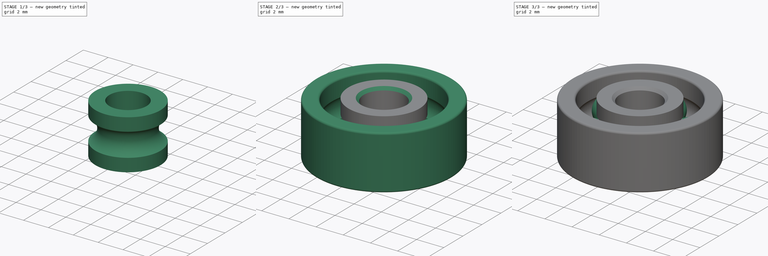
[diagram: build sequence overview — one tinted view per stage of 3, left to right]
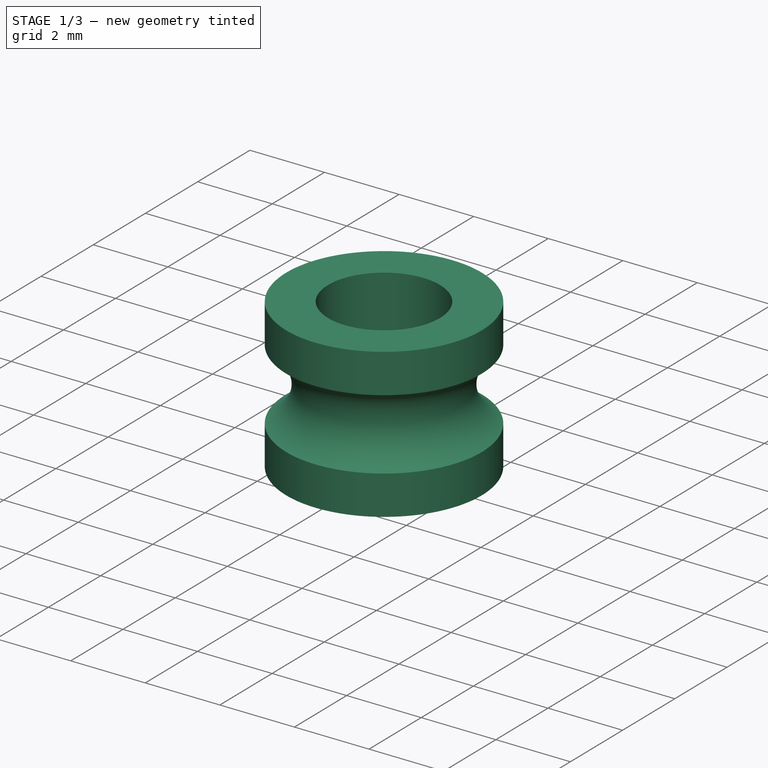
[diagram: stage 1 of 3 — iso view after this stage's code; geometry added in this stage tinted green]
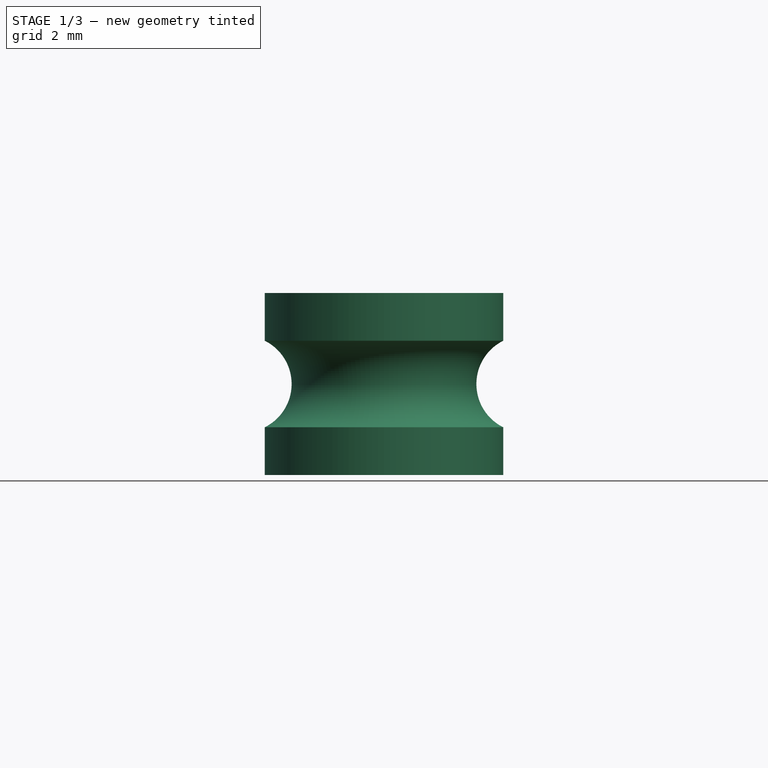
[diagram: stage 1 of 3 — front view after this stage's code; geometry added in this stage tinted green]
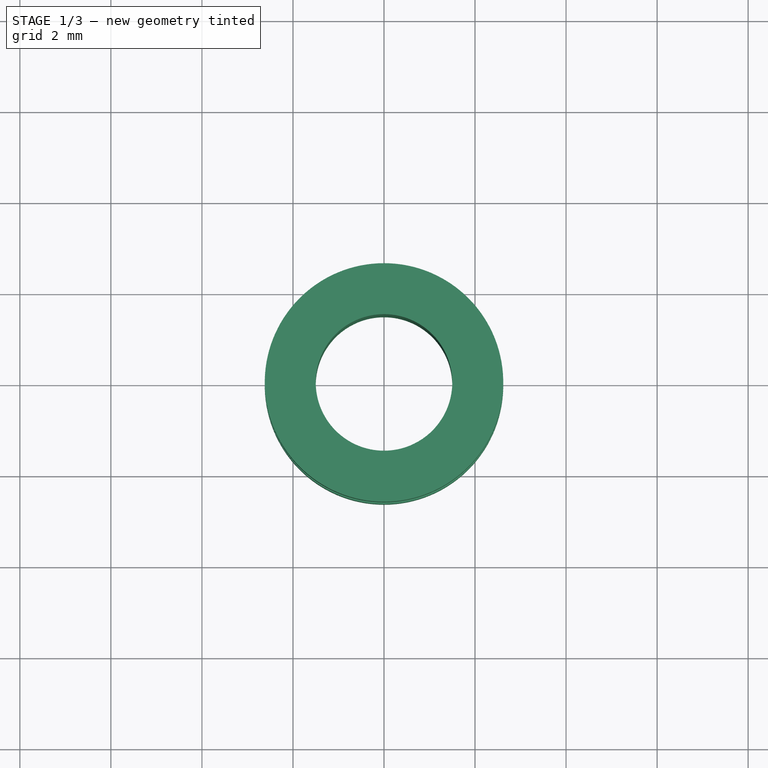
[diagram: stage 1 of 3 — top view after this stage's code; geometry added in this stage tinted green]
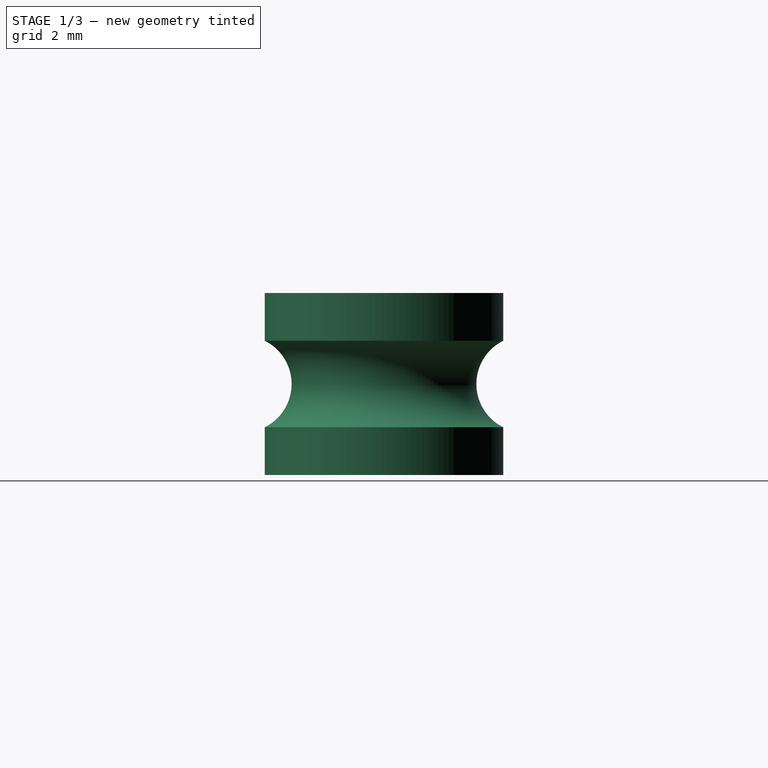
[diagram: stage 1 of 3 — right view after this stage's code; geometry added in this stage tinted green]
FCSTD DOCUMENT  (FreeCAD 0.14R3310 (Git))
Label: 89. RODAMIENTO DIN 625 SKF 623 (DEL EXTRUSOR)
License: CC-BY 3.0
LicenseURL: http://creativecommons.org/licenses/by/3.0/
objects: Sketcher::SketchObject×3, PartDesign::Revolution×2, Part::Sphere×1, Part::FeaturePython×1, PartDesign::Fillet×1, PartDesign::Pocket×1, PartDesign::Chamfer×1
note: 13 computed .brp shape members not serialized (recipe doc carries the construction recipe); baked Part::Feature solids carry a one-line shape summary decoded from their .brp

FEATURE [Sketcher::SketchObject] Sketch
  Placement = pos=(0,0,0) rot=(0.57735,0.57735,0.57735;2.0944rad)
  sketch-geometry (13):
    g0: LineSegment [constr] StartX=5 StartY=2 StartZ=0 EndX=5 EndY=-2 EndZ=0
    g1: LineSegment [constr] StartX=5 StartY=2 StartZ=0 EndX=0 EndY=2 EndZ=0
    g2: LineSegment StartX=0 StartY=2 StartZ=0 EndX=2.62 EndY=2 EndZ=0
    g3: ArcOfCircle CenterX=3.09 CenterY=0 CenterZ=0 NormalX=0 NormalY=0 NormalZ=1 Radius=1.06 StartAngle=2.03018 EndAngle=4.253
    g4: LineSegment StartX=2.62 StartY=2 StartZ=0 EndX=2.62 EndY=0.950105 EndZ=0
    g5: LineSegment StartX=2.62 StartY=-0.950105 StartZ=0 EndX=2.62 EndY=-2 EndZ=0
    g6: LineSegment StartX=2.62 StartY=-2 StartZ=0 EndX=0 EndY=-2 EndZ=0
    g7: LineSegment StartX=0 StartY=2 StartZ=0 EndX=0 EndY=-2 EndZ=0
    g8: LineSegment [constr] StartX=5 StartY=2 StartZ=0 EndX=3.88 EndY=2 EndZ=0
    g9: LineSegment [constr] StartX=3.88 StartY=2 StartZ=0 EndX=3.88 EndY=0.706753 EndZ=0
    g10: LineSegment [constr] StartX=5 StartY=-2 StartZ=0 EndX=3.88 EndY=-2 EndZ=0
    g11: LineSegment [constr] StartX=3.88 StartY=-2 StartZ=0 EndX=3.88 EndY=-0.706753 EndZ=0
    g12: ArcOfCircle [constr] CenterX=3.09 CenterY=0 CenterZ=0 NormalX=0 NormalY=0 NormalZ=1 Radius=1.06 StartAngle=5.55335 EndAngle=7.01302
  constraints (38):
    c: Vertical(g0)
    c: Symmetric(g0,g0,g-1)
    c: Distance(g0) = 4
    c: Coincident(g1,g0)
    c: PointOnObject(g1,g-2)
    c: Horizontal(g1)
    c: Distance(g1) = 5
    c: Coincident(g2,g1)
    c: PointOnObject(g2,g1)
    c: Distance(g2,g1) = 2.62
    c: Radius(g3) = 1.06
    c: Coincident(g4,g2)
    c: Coincident(g4,g3)
    c: Vertical(g4)
    c: Coincident(g5,g3)
    c: Vertical(g5)
    c: Symmetric(g5,g2,g-1)
    c: Coincident(g6,g5)
    c: PointOnObject(g6,g-2)
    c: Horizontal(g6)
    c: Coincident(g7,g1)
    c: Coincident(g7,g6)
    c: Coincident(g8,g0)
    c: Horizontal(g8)
    c: DistanceX(g-2,g8) = 3.88
    c: Coincident(g9,g8)
    c: Vertical(g9)
    c: Coincident(g10,g0)
    c: Horizontal(g10)
    c: Coincident(g11,g10)
    c: Vertical(g11)
    c: Symmetric(g9,g11,g-1)
    c: Symmetric(g3,g3,g-1)
    c: Distance(g3,g7) = 3.09
    c: Coincident(g12,g3)
    c: Coincident(g12,g9)
    c: Coincident(g12,g11)
    c: Equal(g12,g3)
FEATURE [PartDesign::Revolution] Revolution
  Angle = 360
  Axis = (0,0,1)
  Base = (0,0,0)
  Placement = pos=(0,0,0) rot=(0.57735,0.57735,0.57735;2.0944rad)
  ReferenceAxis = -> Sketch [V_Axis]
  Reversed = true
  Sketch = -> Sketch
FEATURE [Sketcher::SketchObject] Sketch002
  Placement = pos=(0,0,2) rot=(0,0,-1;1.5708rad)
  Support = -> Revolution [Face1]
  sketch-geometry (1):
    g0: Circle CenterX=0 CenterY=0 CenterZ=0 NormalX=0 NormalY=0 NormalZ=1 Radius=1.5
  constraints (2):
    c: Coincident(g0,g-1)
    c: Radius(g0) = 1.5
FEATURE [PartDesign::Pocket] Pocket
  Length = 5
  Placement = pos=(0,0,0) rot=(0.57735,0.57735,0.57735;2.0944rad)
  Sketch = -> Sketch002
  Type = 0
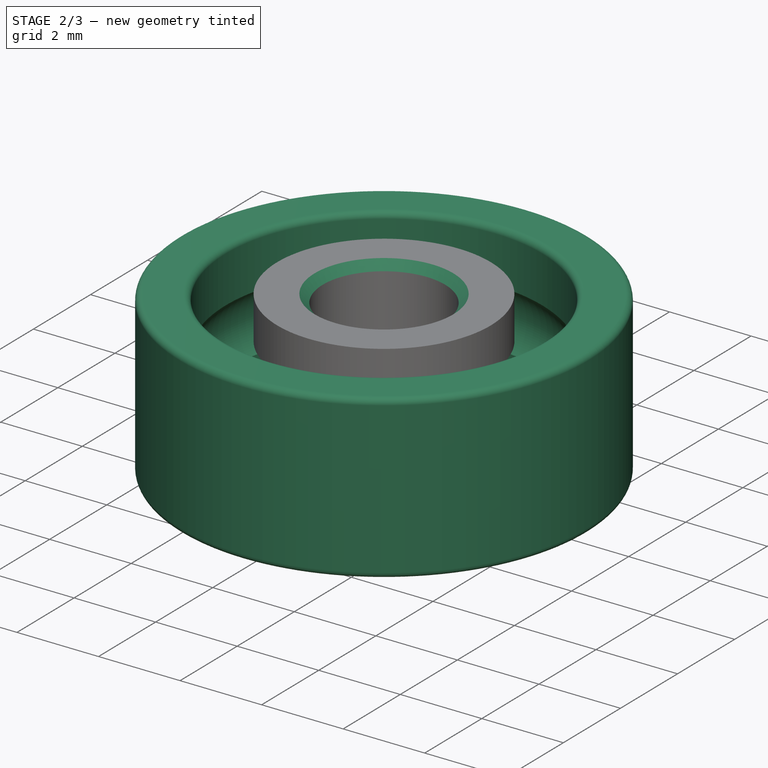
[diagram: stage 2 of 3 — iso view after this stage's code; geometry added in this stage tinted green]
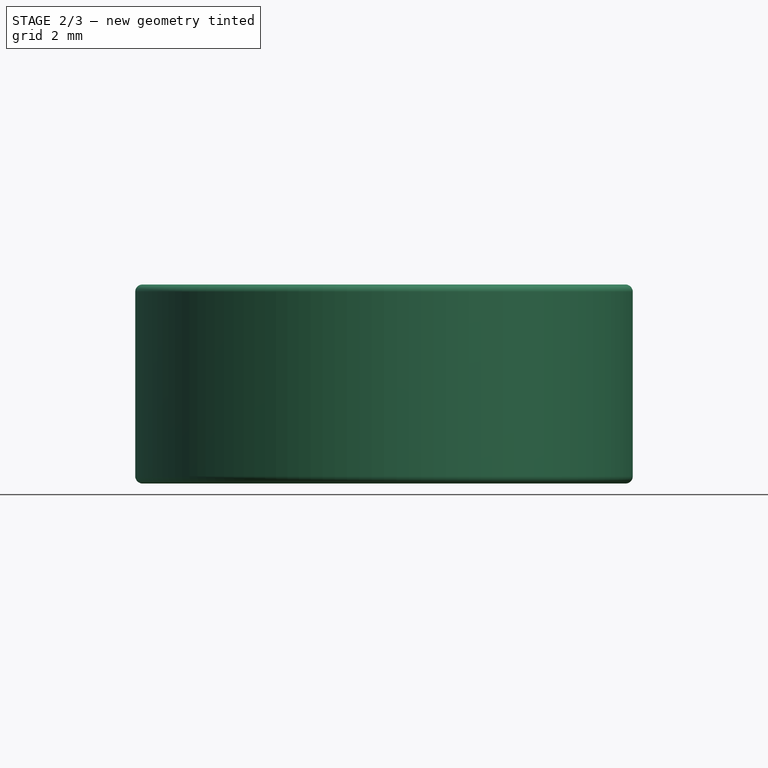
[diagram: stage 2 of 3 — front view after this stage's code; geometry added in this stage tinted green]
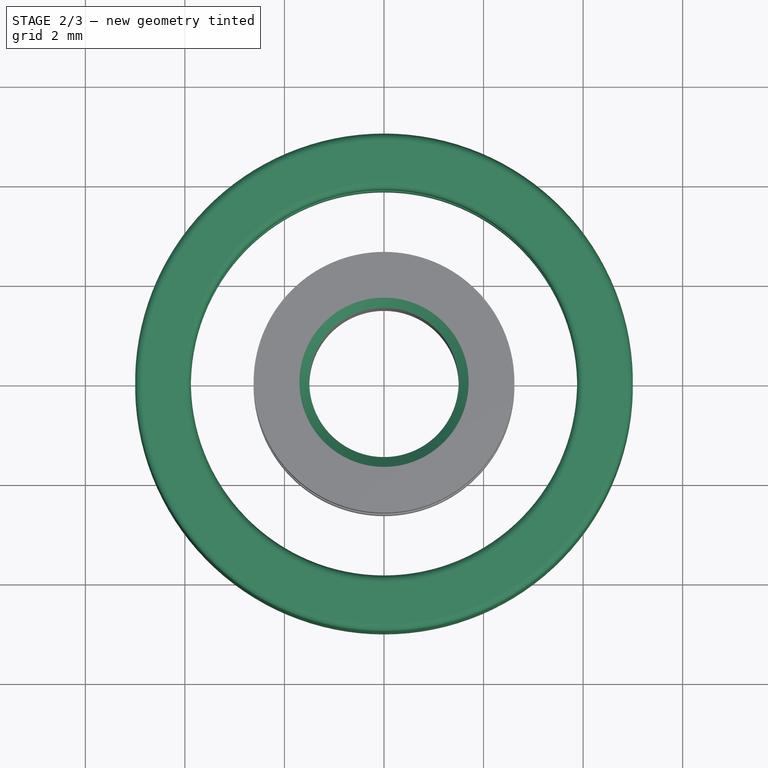
[diagram: stage 2 of 3 — top view after this stage's code; geometry added in this stage tinted green]
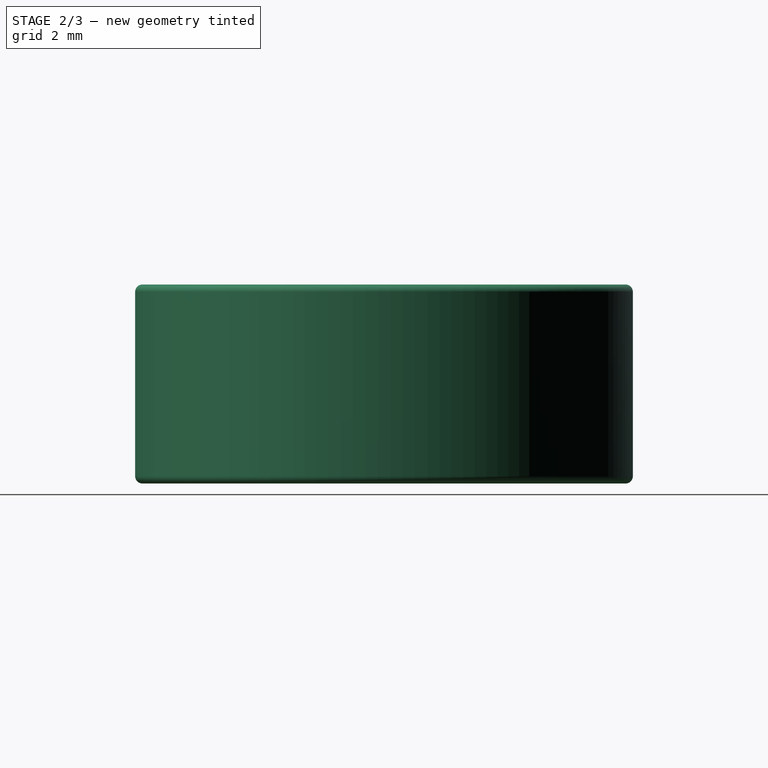
[diagram: stage 2 of 3 — right view after this stage's code; geometry added in this stage tinted green]
FEATURE [Sketcher::SketchObject] Sketch001
  Placement = pos=(0,0,0) rot=(0.57735,0.57735,0.57735;2.0944rad)
  sketch-geometry (6):
    g0: LineSegment StartX=3.88 StartY=2 StartZ=0 EndX=5 EndY=2 EndZ=0
    g1: LineSegment StartX=5 StartY=2 StartZ=0 EndX=5 EndY=-2 EndZ=0
    g2: LineSegment StartX=5 StartY=-2 StartZ=0 EndX=3.88 EndY=-2 EndZ=0
    g3: ArcOfCircle CenterX=3.09 CenterY=0 CenterZ=0 NormalX=0 NormalY=0 NormalZ=1 Radius=1.06 StartAngle=5.55335 EndAngle=7.01302
    g4: LineSegment StartX=3.88 StartY=2 StartZ=0 EndX=3.88 EndY=0.706753 EndZ=0
    g5: LineSegment StartX=3.88 StartY=-0.706753 StartZ=0 EndX=3.88 EndY=-2 EndZ=0
  constraints (19):
    c: Horizontal(g0)
    c: Coincident(g1,g0)
    c: Vertical(g1)
    c: Coincident(g2,g1)
    c: Horizontal(g2)
    c: DistanceX(g-2,g0) = 5
    c: PointOnObject(g3,g-1)
    c: DistanceX(g-2,g3) = 3.09
    c: Radius(g3) = 1.06
    c: DistanceX(g-2,g0) = 3.88
    c: Coincident(g4,g0)
    c: Coincident(g4,g3)
    c: Vertical(g4)
    c: Coincident(g5,g3)
    c: Vertical(g5)
    c: Coincident(g2,g5)
    c: Symmetric(g0,g1,g-1)
    c: Distance(g1) = 4
    c: Symmetric(g2,g0,g-1)
FEATURE [PartDesign::Revolution] Revolution001
  Angle = 360
  Axis = (0,0,1)
  Base = (0,0,0)
  Placement = pos=(0,0,0) rot=(0.57735,0.57735,0.57735;2.0944rad)
  ReferenceAxis = -> Sketch001 [V_Axis]
  Reversed = true
  Sketch = -> Sketch001
FEATURE [PartDesign::Fillet] Fillet
  Base = -> Revolution001 [Edge7,Edge9,Edge6,Edge4]
  Placement = pos=(0,0,0) rot=(0.57735,0.57735,0.57735;2.0944rad)
  Radius = 0.15
FEATURE [PartDesign::Chamfer] Chamfer
  Base = -> Pocket [Edge2,Edge6]
  Placement = pos=(0,0,0) rot=(0.57735,0.57735,0.57735;2.0944rad)
  Size = 0.2
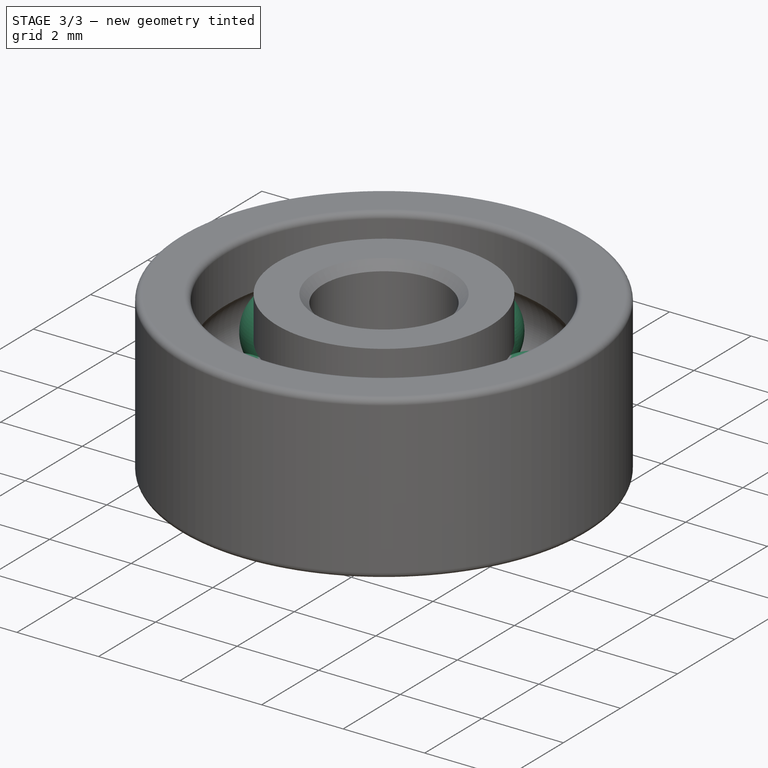
[diagram: stage 3 of 3 — iso view after this stage's code; geometry added in this stage tinted green]
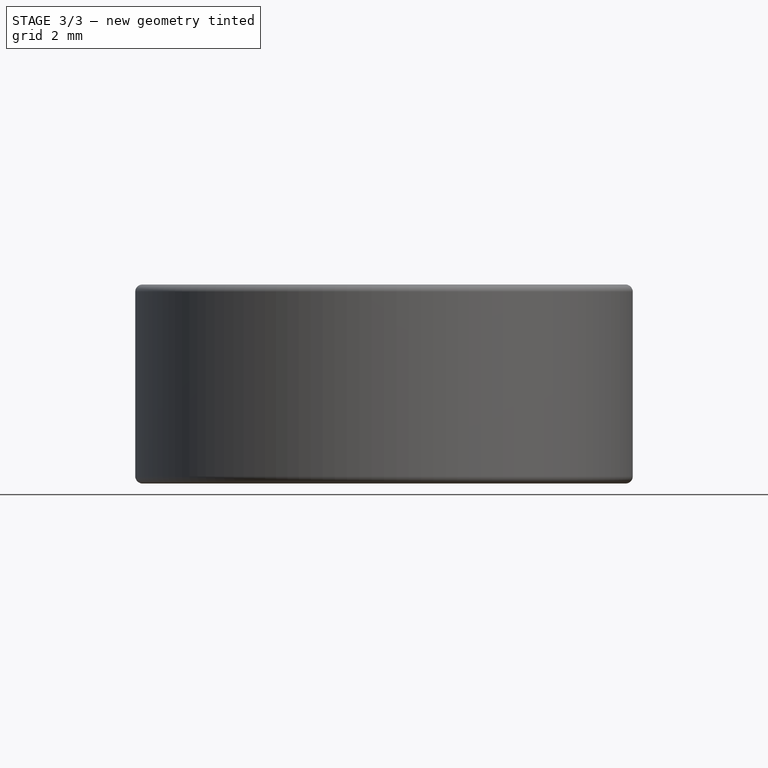
[diagram: stage 3 of 3 — front view after this stage's code; geometry added in this stage tinted green]
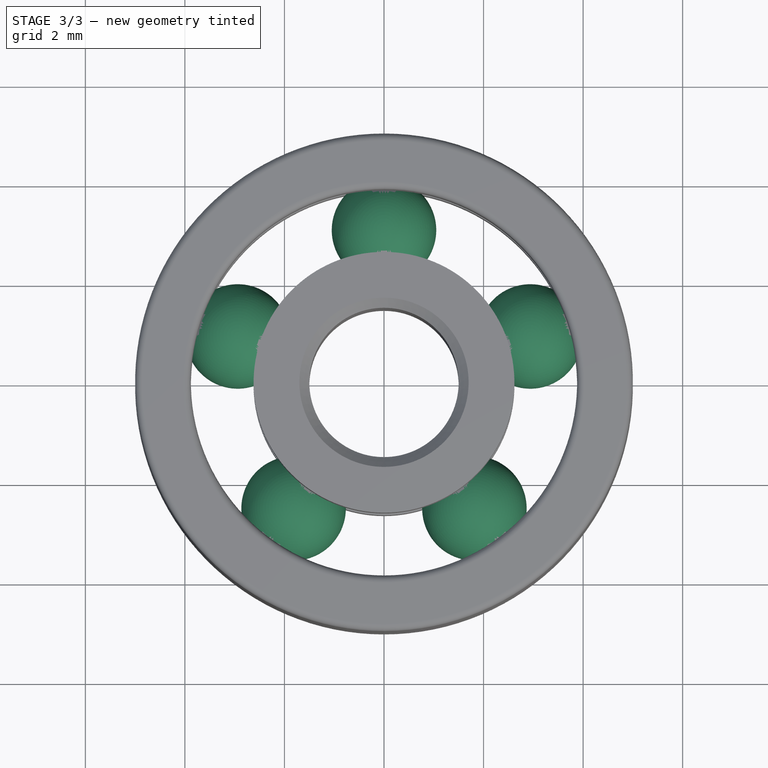
[diagram: stage 3 of 3 — top view after this stage's code; geometry added in this stage tinted green]
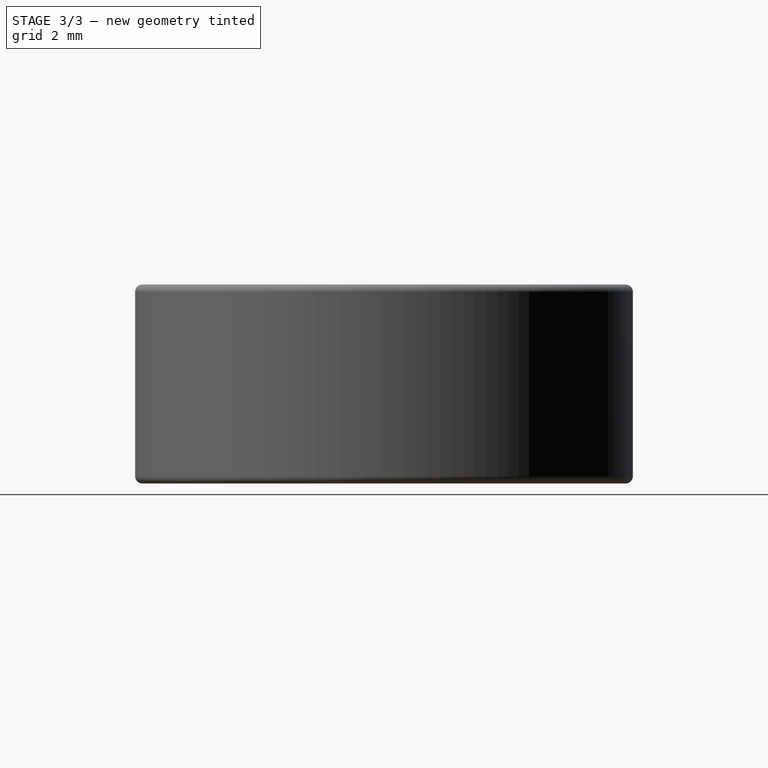
[diagram: stage 3 of 3 — right view after this stage's code; geometry added in this stage tinted green]
FEATURE [Part::Sphere] Sphere  label="Esféra"
  Angle1 = -90
  Angle2 = 90
  Angle3 = 360
  Placement = pos=(0,3.09,0) rot=(0,0,1;0rad)
  Radius = 1.05
FEATURE [Part::FeaturePython] Array  # Draft array (typed FeaturePython)
  Angle = 360
  ArrayType = 1
  Axis = (0,0,1)
  Base = -> Sphere
  Center = (0,0,0)
  IntervalX = (1,0,0)
  IntervalY = (0,1,0)
  IntervalZ = (0,0,1)
  NumberPolar = 5
  NumberX = 2
  NumberY = 2
  NumberZ = 1
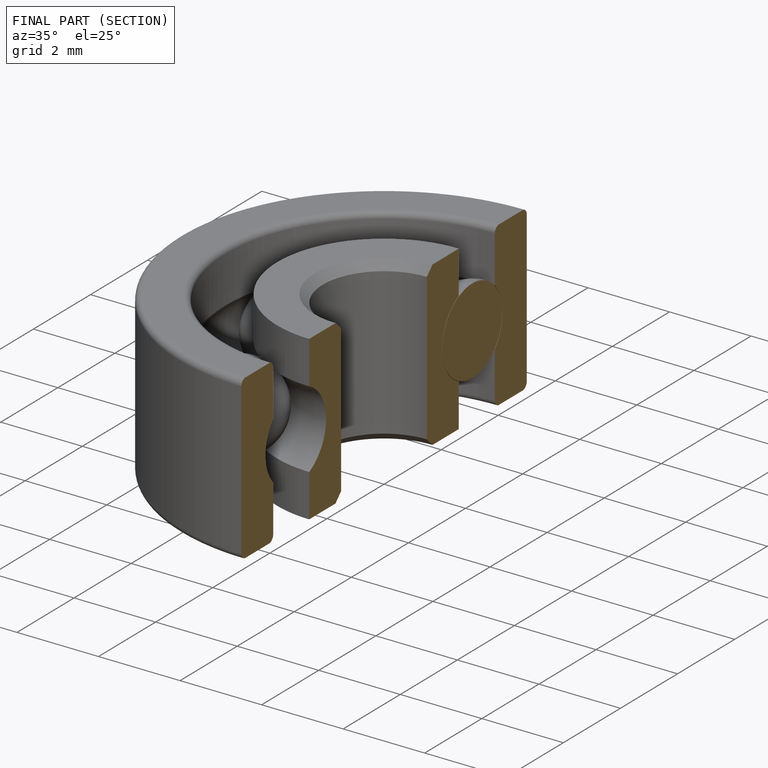
[diagram: finished part — half-section view (interior)]
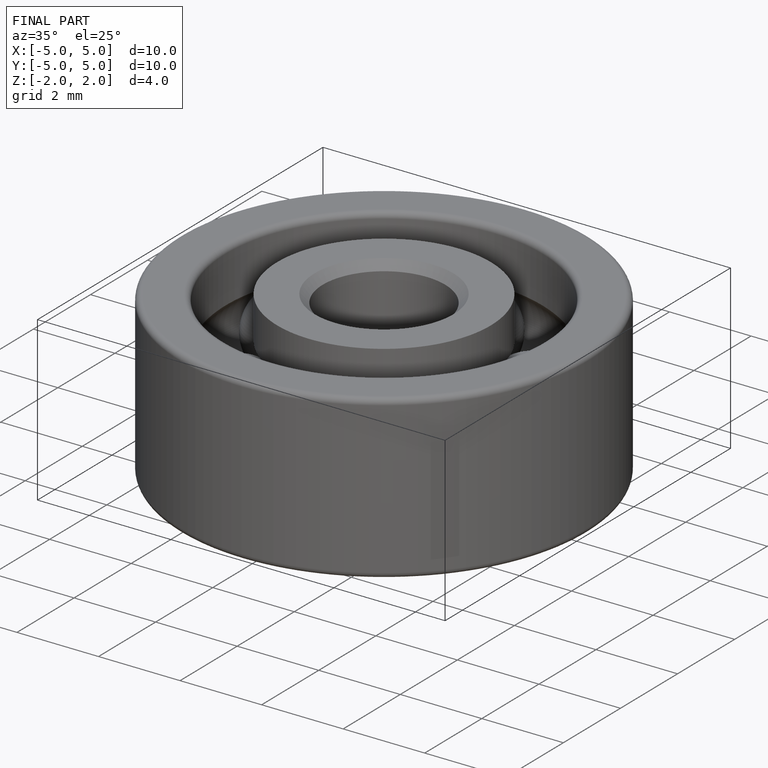
[diagram: finished part — iso view with bounding-box wireframe]
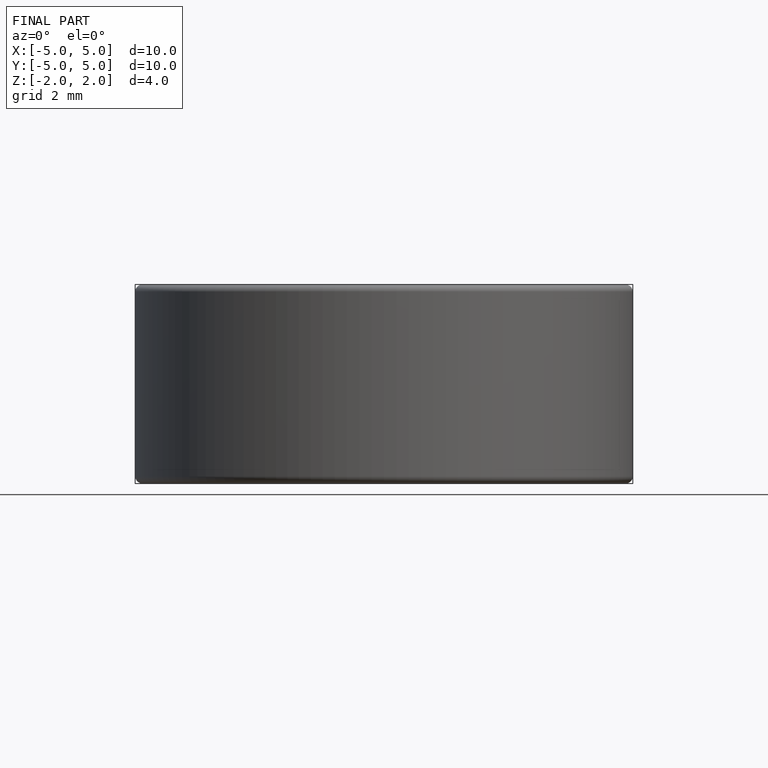
[diagram: finished part — front view with bounding-box wireframe]
